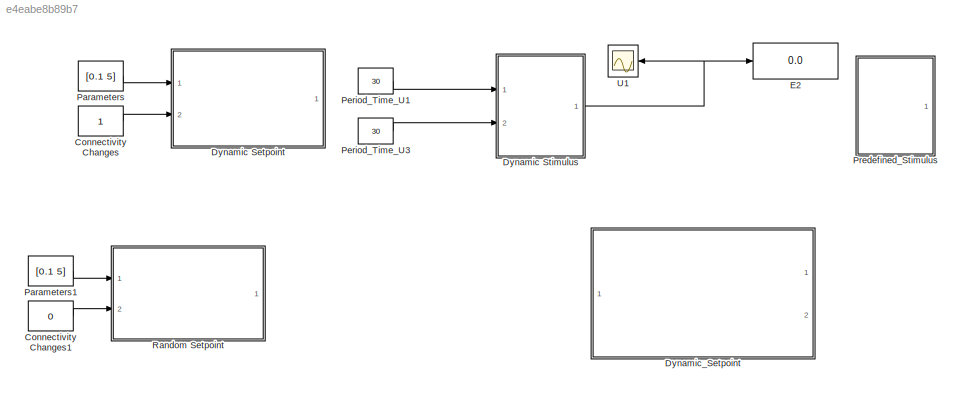
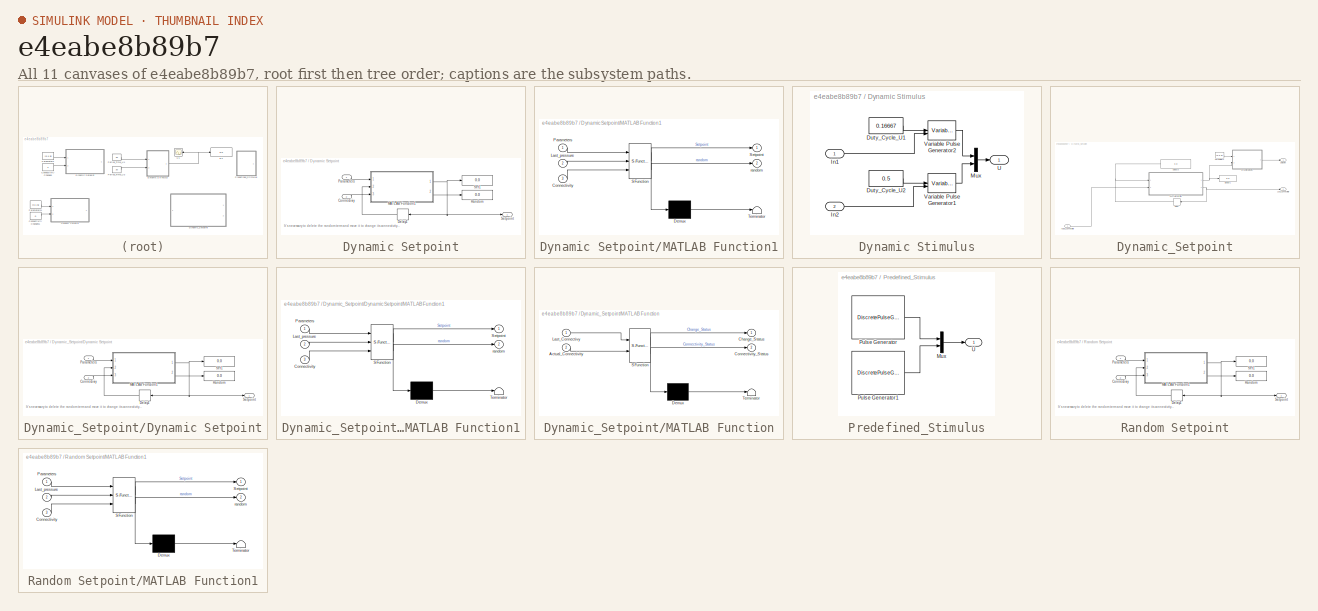
[diagram: thumbnail index - all 11 canvases of the model, root first then tree order]
MODEL slx_e4eabe8b89b7
KIND model
CONFIG AbsTol = auto
CONFIG EnableMultiTasking = off
CONFIG FixedStep = auto
CONFIG MaxStep = auto
CONFIG MinStep = auto
CONFIG RelTol = 1e-3
CONFIG SampleTimeConstraint = Unconstrained
CONFIG SolverName = VariableStepAuto
CONFIG StartTime = 0.0
CONFIG StopTime = 10.0
BLOCK [Constant] Connectivity Changes
BLOCK [Constant] Connectivity Changes1
  Commented = on
  Value = 0
BLOCK [SubSystem] Dynamic Setpoint
  Ports = [2, 1]
  RequestExecContextInheritance = off
BLOCK [Inport] Dynamic Setpoint/Connectiviy
  Port = 2
BLOCK [Delay] Dynamic Setpoint/Delay1
  DelayLength = 1
  InitialCondition = 0
  InputPortMap = u0
  Ports = [1, 1]
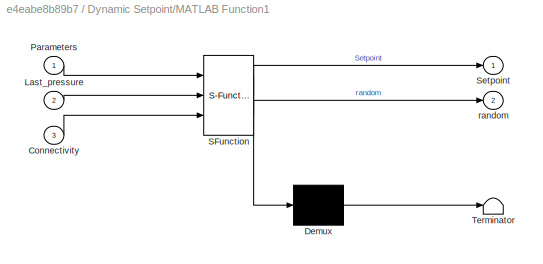
BLOCK [SubSystem] Dynamic Setpoint/MATLAB Function1
  ErrorFcn = Stateflow.Translate.translate
  PermitHierarchicalResolution = ExplicitOnly
  Ports = [3, 2]
  RequestExecContextInheritance = off
  SFBlockType = MATLAB Function
  TreatAsAtomicUnit = on
BLOCK [Demux] Dynamic Setpoint/MATLAB Function1/ Demux 
  Outputs = 1
  Ports = [1, 1]
BLOCK [S-Function] Dynamic Setpoint/MATLAB Function1/ SFunction 
  EnableBusSupport = on
  FunctionName = sf_sfun
  PortCounts = [3 3]
  Ports = [3, 3]
  SFcnIsStateOwnerBlock = off
  SFunctionDeploymentMode = off
  Tag = Stateflow S-Function 11
BLOCK [Terminator] Dynamic Setpoint/MATLAB Function1/ Terminator 
BLOCK [Inport] Dynamic Setpoint/MATLAB Function1/Connectivity
  Port = 3
BLOCK [Inport] Dynamic Setpoint/MATLAB Function1/Last_pressure
  Port = 2
BLOCK [Inport] Dynamic Setpoint/MATLAB Function1/Parameters
BLOCK [Outport] Dynamic Setpoint/MATLAB Function1/Setpoint
BLOCK [Outport] Dynamic Setpoint/MATLAB Function1/random
  Port = 2
BLOCK [Inport] Dynamic Setpoint/Parameters
BLOCK [Display] Dynamic Setpoint/Random
  Decimation = 1
  Ports = [1]
BLOCK [Display] Dynamic Setpoint/Set1
  Decimation = 1
  Ports = [1]
BLOCK [Outport] Dynamic Setpoint/Setpoint
BLOCK [SubSystem] Dynamic Stimulus
  Ports = [2, 1]
  RequestExecContextInheritance = off
BLOCK [Constant] Dynamic Stimulus/Duty_Cycle_U1
  OutMax = [0.8]
  OutMin = [0]
  Value = 0.16667
BLOCK [Constant] Dynamic Stimulus/Duty_Cycle_U2
  OutMax = [0.8]
  OutMin = [0]
  Value = 0.5
BLOCK [Inport] Dynamic Stimulus/In1
BLOCK [Inport] Dynamic Stimulus/In2
  Port = 2
BLOCK [Mux] Dynamic Stimulus/Mux
  DisplayOption = bar
  Inputs = 2
  Ports = [2, 1]
BLOCK [Outport] Dynamic Stimulus/U
BLOCK [VariablePulseGenerator] Dynamic Stimulus/Variable Pulse Generator1
  RunAtFixedTimeIntervals = on
  SampleTime = 1/100
BLOCK [VariablePulseGenerator] Dynamic Stimulus/Variable Pulse Generator2
  RunAtFixedTimeIntervals = on
  SampleTime = 1/100
BLOCK [SubSystem] Dynamic_Setpoint
  Commented = on
  Ports = [1, 2]
  RequestExecContextInheritance = off
BLOCK [Inport] Dynamic_Setpoint/Actual_Connectivity
BLOCK [Delay] Dynamic_Setpoint/Delay
  DelayLength = 1
  InputPortMap = u0
  Ports = [1, 1]
BLOCK [Display] Dynamic_Setpoint/Display1
  Decimation = 1
  Ports = [1]
BLOCK [Display] Dynamic_Setpoint/Display3
  Decimation = 1
  Ports = [1]
BLOCK [SubSystem] Dynamic_Setpoint/Dynamic Setpoint
  Ports = [2, 1]
  RequestExecContextInheritance = off
BLOCK [Inport] Dynamic_Setpoint/Dynamic Setpoint/Connectiviy
  Port = 2
BLOCK [Delay] Dynamic_Setpoint/Dynamic Setpoint/Delay1
  DelayLength = 1
  InitialCondition = 0
  InputPortMap = u0
  Ports = [1, 1]
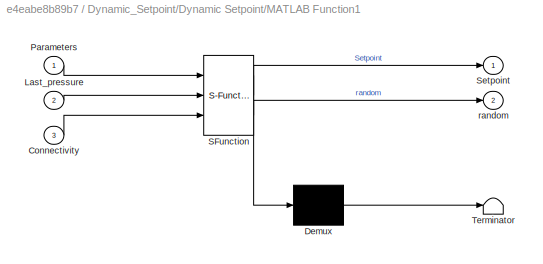
BLOCK [SubSystem] Dynamic_Setpoint/Dynamic Setpoint/MATLAB Function1
  ErrorFcn = Stateflow.Translate.translate
  PermitHierarchicalResolution = ExplicitOnly
  Ports = [3, 2]
  RequestExecContextInheritance = off
  SFBlockType = MATLAB Function
  TreatAsAtomicUnit = on
BLOCK [Demux] Dynamic_Setpoint/Dynamic Setpoint/MATLAB Function1/ Demux 
  Outputs = 1
  Ports = [1, 1]
BLOCK [S-Function] Dynamic_Setpoint/Dynamic Setpoint/MATLAB Function1/ SFunction 
  EnableBusSupport = on
  FunctionName = sf_sfun
  PortCounts = [3 3]
  Ports = [3, 3]
  SFcnIsStateOwnerBlock = off
  SFunctionDeploymentMode = off
  Tag = Stateflow S-Function 9
BLOCK [Terminator] Dynamic_Setpoint/Dynamic Setpoint/MATLAB Function1/ Terminator 
BLOCK [Inport] Dynamic_Setpoint/Dynamic Setpoint/MATLAB Function1/Connectivity
  Port = 3
BLOCK [Inport] Dynamic_Setpoint/Dynamic Setpoint/MATLAB Function1/Last_pressure
  Port = 2
BLOCK [Inport] Dynamic_Setpoint/Dynamic Setpoint/MATLAB Function1/Parameters
BLOCK [Outport] Dynamic_Setpoint/Dynamic Setpoint/MATLAB Function1/Setpoint
BLOCK [Outport] Dynamic_Setpoint/Dynamic Setpoint/MATLAB Function1/random
  Port = 2
BLOCK [Inport] Dynamic_Setpoint/Dynamic Setpoint/Parameters
BLOCK [Display] Dynamic_Setpoint/Dynamic Setpoint/Random
  Decimation = 1
  Ports = [1]
BLOCK [Display] Dynamic_Setpoint/Dynamic Setpoint/Set1
  Decimation = 1
  Ports = [1]
BLOCK [Outport] Dynamic_Setpoint/Dynamic Setpoint/Setpoint
BLOCK [Outport] Dynamic_Setpoint/Last_Connectivity
  Port = 2
BLOCK [SubSystem] Dynamic_Setpoint/MATLAB Function
  ErrorFcn = Stateflow.Translate.translate
  PermitHierarchicalResolution = ExplicitOnly
  Ports = [2, 2]
  RequestExecContextInheritance = off
  SFBlockType = MATLAB Function
  TreatAsAtomicUnit = on
BLOCK [Demux] Dynamic_Setpoint/MATLAB Function/ Demux 
  Outputs = 1
  Ports = [1, 1]
BLOCK [S-Function] Dynamic_Setpoint/MATLAB Function/ SFunction 
  EnableBusSupport = on
  FunctionName = sf_sfun
  PortCounts = [2 3]
  Ports = [2, 3]
  SFcnIsStateOwnerBlock = off
  SFunctionDeploymentMode = off
  Tag = Stateflow S-Function 12
BLOCK [Terminator] Dynamic_Setpoint/MATLAB Function/ Terminator 
BLOCK [Inport] Dynamic_Setpoint/MATLAB Function/Actual_Connectivity
  Port = 2
BLOCK [Outport] Dynamic_Setpoint/MATLAB Function/Change_Status
BLOCK [Outport] Dynamic_Setpoint/MATLAB Function/Connectivity_Status
  Port = 2
BLOCK [Inport] Dynamic_Setpoint/MATLAB Function/Last_Connectivy
BLOCK [Constant] Dynamic_Setpoint/Parameters
  Value = [0.5 5]
BLOCK [Outport] Dynamic_Setpoint/Setpoint
BLOCK [Display] E2
  Decimation = 1
  Ports = [1]
BLOCK [Constant] Parameters
  Value = [0.1 5]
BLOCK [Constant] Parameters1
  Commented = on
  Value = [0.1 5]
BLOCK [Constant] Period_Time_U1
  Value = 30
BLOCK [Constant] Period_Time_U3
  Value = 30
BLOCK [SubSystem] Predefined_Stimulus
  Ports = [0, 1]
  RequestExecContextInheritance = off
BLOCK [Mux] Predefined_Stimulus/Mux
  DisplayOption = bar
  Inputs = 2
  Ports = [2, 1]
BLOCK [DiscretePulseGenerator] Predefined_Stimulus/Pulse Generator
  Amplitude = 0.6
  Period = 30
  Ports = [0, 1]
  PulseWidth = 5
BLOCK [DiscretePulseGenerator] Predefined_Stimulus/Pulse Generator1
  Amplitude = 0.6
  Period = 30
  Ports = [0, 1]
  PulseWidth = 6
BLOCK [Outport] Predefined_Stimulus/U
BLOCK [SubSystem] Random Setpoint
  Commented = on
  Ports = [2, 1]
  RequestExecContextInheritance = off
BLOCK [Inport] Random Setpoint/Connectiviy
  Port = 2
BLOCK [Delay] Random Setpoint/Delay1
  DelayLength = 1
  InitialCondition = 0
  InputPortMap = u0
  Ports = [1, 1]
BLOCK [SubSystem] Random Setpoint/MATLAB Function1
  ErrorFcn = Stateflow.Translate.translate
  PermitHierarchicalResolution = ExplicitOnly
  Ports = [3, 2]
  RequestExecContextInheritance = off
  SFBlockType = MATLAB Function
  TreatAsAtomicUnit = on
BLOCK [Demux] Random Setpoint/MATLAB Function1/ Demux 
  Outputs = 1
  Ports = [1, 1]
BLOCK [S-Function] Random Setpoint/MATLAB Function1/ SFunction 
  EnableBusSupport = on
  FunctionName = sf_sfun
  PortCounts = [3 3]
  Ports = [3, 3]
  SFcnIsStateOwnerBlock = off
  SFunctionDeploymentMode = off
  Tag = Stateflow S-Function 4
BLOCK [Terminator] Random Setpoint/MATLAB Function1/ Terminator 
BLOCK [Inport] Random Setpoint/MATLAB Function1/Connectivity
  Port = 3
BLOCK [Inport] Random Setpoint/MATLAB Function1/Last_pressure
  Port = 2
BLOCK [Inport] Random Setpoint/MATLAB Function1/Parameters
BLOCK [Outport] Random Setpoint/MATLAB Function1/Setpoint
BLOCK [Outport] Random Setpoint/MATLAB Function1/random
  Port = 2
BLOCK [Inport] Random Setpoint/Parameters
BLOCK [Display] Random Setpoint/Random
  Decimation = 1
  Ports = [1]
BLOCK [Display] Random Setpoint/Set1
  Decimation = 1
  Ports = [1]
BLOCK [Outport] Random Setpoint/Setpoint
BLOCK [Scope] U1
  Floating = off
  NumInputPorts = 1
  Ports = [1]
  ScopeSpecificationString = Simulink.scopes.TimeScopeBlockCfg('CurrentConfiguration', extmgr.ConfigurationSet(extmgr.Configuration('Core','General UI',true,'FigureColor',[0 0 0]),extmgr.Configuration('Core','Source UI',true),extmgr.Configuration('Sources','WiredSimulink',true),extmgr.Configuration('Visuals','Time Domain',true,'SerializedDisplays',{struct('MinYLimReal','-0.125','MaxYLimReal','1.125','YLabelReal','','MinYLimMa...<+1625ch>
ANNOTATION Dynamic Setpoint: It’s necessary to delete the random term and move it to change its connectivity changes.
ANNOTATION Dynamic_Setpoint/Dynamic Setpoint: It’s necessary to delete the random term and move it to change its connectivity changes.
ANNOTATION Random Setpoint: It’s necessary to delete the random term and move it to change its connectivity changes.
LINE Connectivity Changes1:1 -> Random Setpoint:2
LINE Connectivity Changes:1 -> Dynamic Setpoint:2
LINE Dynamic Setpoint/Connectiviy:1 -> Dynamic Setpoint/MATLAB Function1:3
LINE Dynamic Setpoint/Delay1:1 -> Dynamic Setpoint/MATLAB Function1:2
NET Dynamic Setpoint/MATLAB Function1:1 -> Dynamic Setpoint/Delay1:1, Dynamic Setpoint/Set1:1, Dynamic Setpoint/Setpoint:1
LINE Dynamic Setpoint/MATLAB Function1:2 -> Dynamic Setpoint/Random:1
LINE Dynamic Setpoint/Parameters:1 -> Dynamic Setpoint/MATLAB Function1:1
LINE Dynamic Stimulus/Duty_Cycle_U1:1 -> Dynamic Stimulus/Variable Pulse Generator2:1
LINE Dynamic Stimulus/Duty_Cycle_U2:1 -> Dynamic Stimulus/Variable Pulse Generator1:1
LINE Dynamic Stimulus/In1:1 -> Dynamic Stimulus/Variable Pulse Generator2:2
LINE Dynamic Stimulus/In2:1 -> Dynamic Stimulus/Variable Pulse Generator1:2
LINE Dynamic Stimulus/Mux:1 -> Dynamic Stimulus/U:1
LINE Dynamic Stimulus/Variable Pulse Generator1:1 -> Dynamic Stimulus/Mux:2
LINE Dynamic Stimulus/Variable Pulse Generator2:1 -> Dynamic Stimulus/Mux:1
NET Dynamic Stimulus:1 -> E2:1, U1:1
LINE Dynamic_Setpoint/Actual_Connectivity:1 -> Dynamic_Setpoint/MATLAB Function:2
NET Dynamic_Setpoint/Delay:1 -> Dynamic_Setpoint/Display3:1, Dynamic_Setpoint/MATLAB Function:1
LINE Dynamic_Setpoint/Dynamic Setpoint/Connectiviy:1 -> Dynamic_Setpoint/Dynamic Setpoint/MATLAB Function1:3
LINE Dynamic_Setpoint/Dynamic Setpoint/Delay1:1 -> Dynamic_Setpoint/Dynamic Setpoint/MATLAB Function1:2
NET Dynamic_Setpoint/Dynamic Setpoint/MATLAB Function1:1 -> Dynamic_Setpoint/Dynamic Setpoint/Delay1:1, Dynamic_Setpoint/Dynamic Setpoint/Set1:1, Dynamic_Setpoint/Dynamic Setpoint/Setpoint:1
LINE Dynamic_Setpoint/Dynamic Setpoint/MATLAB Function1:2 -> Dynamic_Setpoint/Dynamic Setpoint/Random:1
LINE Dynamic_Setpoint/Dynamic Setpoint/Parameters:1 -> Dynamic_Setpoint/Dynamic Setpoint/MATLAB Function1:1
LINE Dynamic_Setpoint/Dynamic Setpoint:1 -> Dynamic_Setpoint/Setpoint:1
NET Dynamic_Setpoint/MATLAB Function:1 -> Dynamic_Setpoint/Display1:1, Dynamic_Setpoint/Dynamic Setpoint:2
NET Dynamic_Setpoint/MATLAB Function:2 -> Dynamic_Setpoint/Delay:1, Dynamic_Setpoint/Last_Connectivity:1
LINE Dynamic_Setpoint/Parameters:1 -> Dynamic_Setpoint/Dynamic Setpoint:1
LINE Parameters1:1 -> Random Setpoint:1
LINE Parameters:1 -> Dynamic Setpoint:1
LINE Period_Time_U1:1 -> Dynamic Stimulus:1
LINE Period_Time_U3:1 -> Dynamic Stimulus:2
LINE Predefined_Stimulus/Mux:1 -> Predefined_Stimulus/U:1
LINE Predefined_Stimulus/Pulse Generator1:1 -> Predefined_Stimulus/Mux:2
LINE Predefined_Stimulus/Pulse Generator:1 -> Predefined_Stimulus/Mux:1
LINE Random Setpoint/Connectiviy:1 -> Random Setpoint/MATLAB Function1:3
LINE Random Setpoint/Delay1:1 -> Random Setpoint/MATLAB Function1:2
NET Random Setpoint/MATLAB Function1:1 -> Random Setpoint/Delay1:1, Random Setpoint/Set1:1, Random Setpoint/Setpoint:1
LINE Random Setpoint/MATLAB Function1:2 -> Random Setpoint/Random:1
LINE Random Setpoint/Parameters:1 -> Random Setpoint/MATLAB Function1:1
note: NET lines group one-source signal fan-out (src -> all destinations, sorted); 1:1 wires keep LINE
CHART Random Setpoint/MATLAB Function1 states=1 transitions=1
  STATE_LABEL 'eML_blk_kernel()'
  STATE_LABEL 'SCRIPT:\nfunction [Setpoint, random] = Random_Setpoint(Parameters, Last_pressure, Connectivity)\n    %Parameters = [threshold Start_setpoint]\n    temp = 0;\n   %Pressure Setpoint selection\n    pmin = 1;\n    pmax = 10;\n    new_pressure = pmin + rand(1)*(pmax-pmin);\n\n    %Random used to simulate the connectivity changes, so we must change\n    %the pressure setpoint when changes in the connectitvy are o...<+796ch>'
CHART Dynamic_Setpoint/Dynamic Setpoint/MATLAB Function1 states=1 transitions=1
  STATE_LABEL 'eML_blk_kernel()'
  STATE_LABEL 'SCRIPT:\nfunction [Setpoint, random] = Random_Setpoint(Parameters, Last_pressure, Connectivity)\n    %Parameters = [threshold Start_setpoint]\n    temp = 0;\n   %Pressure Setpoint selection\n    pmin = 5;\n    pmax = 8;\n    new_pressure = pmin + rand(1)*(pmax-pmin);\n\n    %Random used to simulate the connectivity changes, so we must change\n    %the pressure setpoint when changes in the connectitvy are ob...<+792ch>'
CHART Dynamic Setpoint/MATLAB Function1 states=1 transitions=1
  STATE_LABEL 'eML_blk_kernel()'
  STATE_LABEL 'SCRIPT:\nfunction [Setpoint, random] = Random_Setpoint(Parameters, Last_pressure, Connectivity)\n    %Parameters = [threshold Start_setpoint]\n    temp = 0;\n   %Pressure Setpoint selection\n    pmin = 5;\n    pmax = 8;\n    new_pressure = pmin + rand(1)*(pmax-pmin);\n\n    %Random used to simulate the connectivity changes, so we must change\n    %the pressure setpoint when changes in the connectitvy are ob...<+795ch>'
CHART Dynamic_Setpoint/MATLAB Function states=1 transitions=1
  STATE_LABEL 'eML_blk_kernel()'
  STATE_LABEL 'SCRIPT:\nfunction [Change_Status, Connectivity_Status] = Connectivity_Changes(Last_Connectivy , Actual_Connectivity)\n\nif(Actual_Connectivity == Last_Connectivy)\n    Change_Status = 0;\n    \nelse\n    Change_Status = 1;\nend\n\nConnectivity_Status = Actual_Connectivity;\n\n'
CHART  states=0 transitions=0
CHART  states=0 transitions=0
CHART  states=0 transitions=0
CHART  states=0 transitions=0
